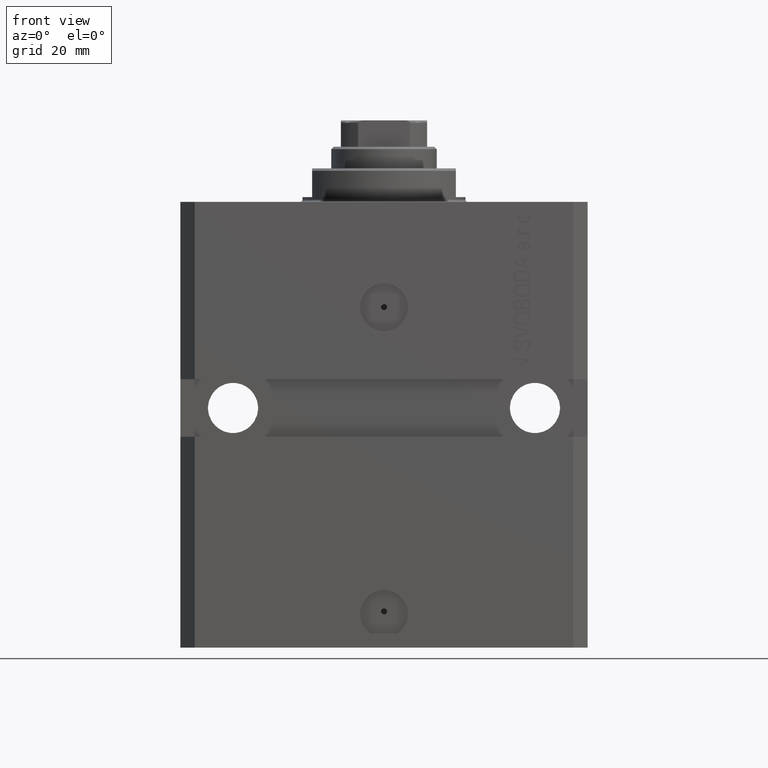
[diagram: clean part render]
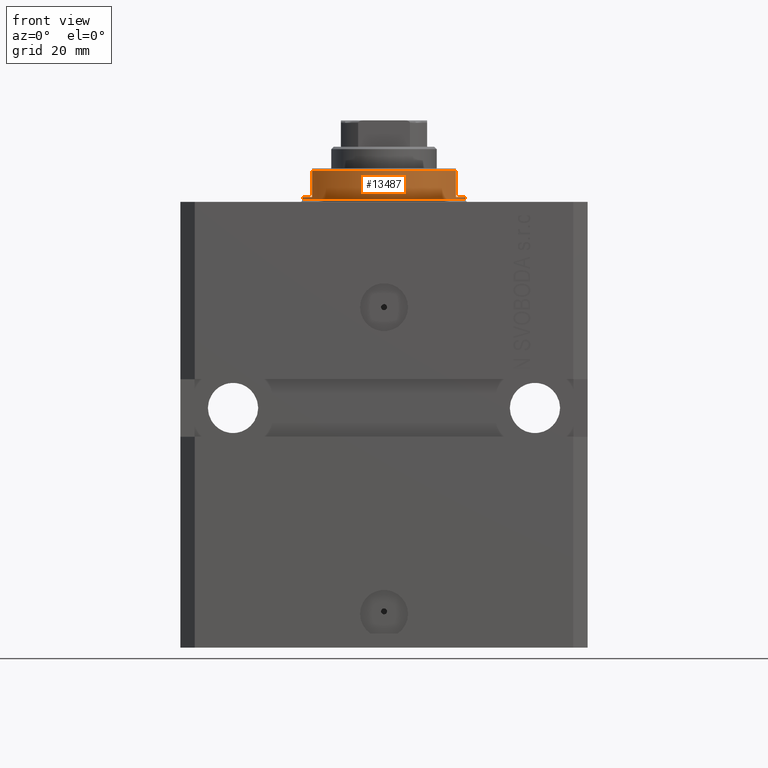
[diagram: same view with one face highlighted and labeled with its STEP entity id]
A machine part, front view. The second image highlights one B-rep face of the part: STEP entity #13487.
In plain terms, the highlighted cylindrical surface (partial cylindrical patch) has radius 17 mm, axis along (0, 0, -1).
Its self-contained STEP definition (entity closure, byte-faithful):
#472 = DIRECTION ( 'NONE',  ( 0.000000000000000000, 0.000000000000000000, 1.000000000000000000 ) ) ;
#649 = CARTESIAN_POINT ( 'NONE',  ( -15.00000000000000000, -8.000000000000001776, -7.000000000000000000 ) ) ;
#880 = DIRECTION ( 'NONE',  ( -0.000000000000000000, -0.000000000000000000, -1.000000000000000000 ) ) ;
#945 = LINE ( 'NONE', #32734, #19852 ) ;
#2565 = VERTEX_POINT ( 'NONE', #27446 ) ;
#2998 = VERTEX_POINT ( 'NONE', #42523 ) ;
#3606 = AXIS2_PLACEMENT_3D ( 'NONE', #9991, #31303, #30865 ) ;
#3703 = CYLINDRICAL_SURFACE ( 'NONE', #35212, 17.00000000000000000 ) ;
#4217 = DIRECTION ( 'NONE',  ( 0.000000000000000000, 0.000000000000000000, -1.000000000000000000 ) ) ;
#4655 = CARTESIAN_POINT ( 'NONE',  ( 0.000000000000000000, 0.000000000000000000, -1.000000000000000000 ) ) ;
#5116 = EDGE_CURVE ( 'NONE', #35573, #29428, #35395, .T. ) ;
#5165 = EDGE_CURVE ( 'NONE', #29428, #42941, #24807, .T. ) ;
#7536 = CARTESIAN_POINT ( 'NONE',  ( 17.00000000000000000, 0.000000000000000000, -1.000000000000000000 ) ) ;
#7910 = LINE ( 'NONE', #649, #38929 ) ;
#8966 = EDGE_CURVE ( 'NONE', #2565, #42941, #945, .T. ) ;
#9209 = CIRCLE ( 'NONE', #36738, 17.00000000000000000 ) ;
#9991 = CARTESIAN_POINT ( 'NONE',  ( 0.000000000000000000, 0.000000000000000000, -1.000000000000000000 ) ) ;
#10487 = AXIS2_PLACEMENT_3D ( 'NONE', #4655, #25089, #18496 ) ;
#10521 = DIRECTION ( 'NONE',  ( -0.000000000000000000, -0.000000000000000000, 1.000000000000000000 ) ) ;
#10679 = EDGE_CURVE ( 'NONE', #35573, #39573, #25012, .T. ) ;
#12512 = VECTOR ( 'NONE', #32884, 1000.000000000000000 ) ;
#13221 = EDGE_LOOP ( 'NONE', ( #35040, #35792, #14597, #37345, #29981, #25604, #16391, #20693 ) ) ;
#13487 = ADVANCED_FACE ( 'NONE', ( #41603 ), #3703, .T. ) ;
#14104 = VERTEX_POINT ( 'NONE', #42205 ) ;
#14420 = LINE ( 'NONE', #14868, #21481 ) ;
#14597 = ORIENTED_EDGE ( 'NONE', *, *, #16427, .T. ) ;
#14868 = CARTESIAN_POINT ( 'NONE',  ( 15.00000000000000000, -8.000000000000001776, -7.000000000000000000 ) ) ;
#15222 = DIRECTION ( 'NONE',  ( -1.000000000000000000, 0.000000000000000000, 0.000000000000000000 ) ) ;
#15395 = CARTESIAN_POINT ( 'NONE',  ( 17.00000000000000000, 0.000000000000000000, -7.000000000000000000 ) ) ;
#15961 = EDGE_CURVE ( 'NONE', #2998, #22603, #9209, .T. ) ;
#16391 = ORIENTED_EDGE ( 'NONE', *, *, #5116, .T. ) ;
#16427 = EDGE_CURVE ( 'NONE', #14104, #2998, #7910, .T. ) ;
#16628 = CIRCLE ( 'NONE', #3606, 17.00000000000000000 ) ;
#17095 = DIRECTION ( 'NONE',  ( 1.000000000000000000, 0.000000000000000000, 0.000000000000000000 ) ) ;
#18496 = DIRECTION ( 'NONE',  ( -1.000000000000000000, 0.000000000000000000, 0.000000000000000000 ) ) ;
#19852 = VECTOR ( 'NONE', #31832, 1000.000000000000000 ) ;
#20693 = ORIENTED_EDGE ( 'NONE', *, *, #5165, .T. ) ;
#21481 = VECTOR ( 'NONE', #4217, 1000.000000000000000 ) ;
#21757 = DIRECTION ( 'NONE',  ( 0.000000000000000000, 0.000000000000000000, -1.000000000000000000 ) ) ;
#22033 = CARTESIAN_POINT ( 'NONE',  ( 0.000000000000000000, 0.000000000000000000, -6.500000000000013323 ) ) ;
#22603 = VERTEX_POINT ( 'NONE', #43279 ) ;
#24807 = CIRCLE ( 'NONE', #27714, 17.00000000000000000 ) ;
#25012 = CIRCLE ( 'NONE', #10487, 17.00000000000000000 ) ;
#25089 = DIRECTION ( 'NONE',  ( 0.000000000000000000, 0.000000000000000000, -1.000000000000000000 ) ) ;
#25604 = ORIENTED_EDGE ( 'NONE', *, *, #10679, .F. ) ;
#27243 = EDGE_CURVE ( 'NONE', #14104, #2565, #16628, .T. ) ;
#27446 = CARTESIAN_POINT ( 'NONE',  ( -17.00000000000000000, 2.081899558550500280E-15, -1.000000000000000000 ) ) ;
#27547 = CARTESIAN_POINT ( 'NONE',  ( 0.000000000000000000, 0.000000000000000000, -7.000000000000000000 ) ) ;
#27714 = AXIS2_PLACEMENT_3D ( 'NONE', #29029, #880, #28573 ) ;
#28573 = DIRECTION ( 'NONE',  ( 1.000000000000000000, 0.000000000000000000, 0.000000000000000000 ) ) ;
#29029 = CARTESIAN_POINT ( 'NONE',  ( 0.000000000000000000, 0.000000000000000000, -0.4999999999999995559 ) ) ;
#29428 = VERTEX_POINT ( 'NONE', #42891 ) ;
#29981 = ORIENTED_EDGE ( 'NONE', *, *, #38434, .F. ) ;
#30865 = DIRECTION ( 'NONE',  ( -1.000000000000000000, 0.000000000000000000, 0.000000000000000000 ) ) ;
#31303 = DIRECTION ( 'NONE',  ( 0.000000000000000000, 0.000000000000000000, -1.000000000000000000 ) ) ;
#31832 = DIRECTION ( 'NONE',  ( -0.000000000000000000, -0.000000000000000000, 1.000000000000000000 ) ) ;
#32734 = CARTESIAN_POINT ( 'NONE',  ( -17.00000000000000000, 2.081899558550500280E-15, -7.000000000000000000 ) ) ;
#32884 = DIRECTION ( 'NONE',  ( -0.000000000000000000, -0.000000000000000000, 1.000000000000000000 ) ) ;
#35040 = ORIENTED_EDGE ( 'NONE', *, *, #8966, .F. ) ;
#35212 = AXIS2_PLACEMENT_3D ( 'NONE', #27547, #10521, #17095 ) ;
#35395 = LINE ( 'NONE', #15395, #12512 ) ;
#35573 = VERTEX_POINT ( 'NONE', #7536 ) ;
#35792 = ORIENTED_EDGE ( 'NONE', *, *, #27243, .F. ) ;
#36738 = AXIS2_PLACEMENT_3D ( 'NONE', #22033, #472, #15222 ) ;
#37345 = ORIENTED_EDGE ( 'NONE', *, *, #15961, .T. ) ;
#37542 = CARTESIAN_POINT ( 'NONE',  ( -17.00000000000000000, 2.081899558550500280E-15, -0.4999999999999995559 ) ) ;
#38434 = EDGE_CURVE ( 'NONE', #39573, #22603, #14420, .T. ) ;
#38929 = VECTOR ( 'NONE', #21757, 1000.000000000000000 ) ;
#39573 = VERTEX_POINT ( 'NONE', #39700 ) ;
#39700 = CARTESIAN_POINT ( 'NONE',  ( 14.99999999999999645, -8.000000000000003553, -1.000000000000000000 ) ) ;
#41603 = FACE_OUTER_BOUND ( 'NONE', #13221, .T. ) ;
#42205 = CARTESIAN_POINT ( 'NONE',  ( -14.99999999999999645, -8.000000000000003553, -1.000000000000000000 ) ) ;
#42523 = CARTESIAN_POINT ( 'NONE',  ( -15.00000000000000000, -8.000000000000001776, -6.500000000000014211 ) ) ;
#42891 = CARTESIAN_POINT ( 'NONE',  ( 17.00000000000000000, 0.000000000000000000, -0.4999999999999995559 ) ) ;
#42941 = VERTEX_POINT ( 'NONE', #37542 ) ;
#43279 = CARTESIAN_POINT ( 'NONE',  ( 15.00000000000000000, -8.000000000000001776, -6.500000000000013323 ) ) ;